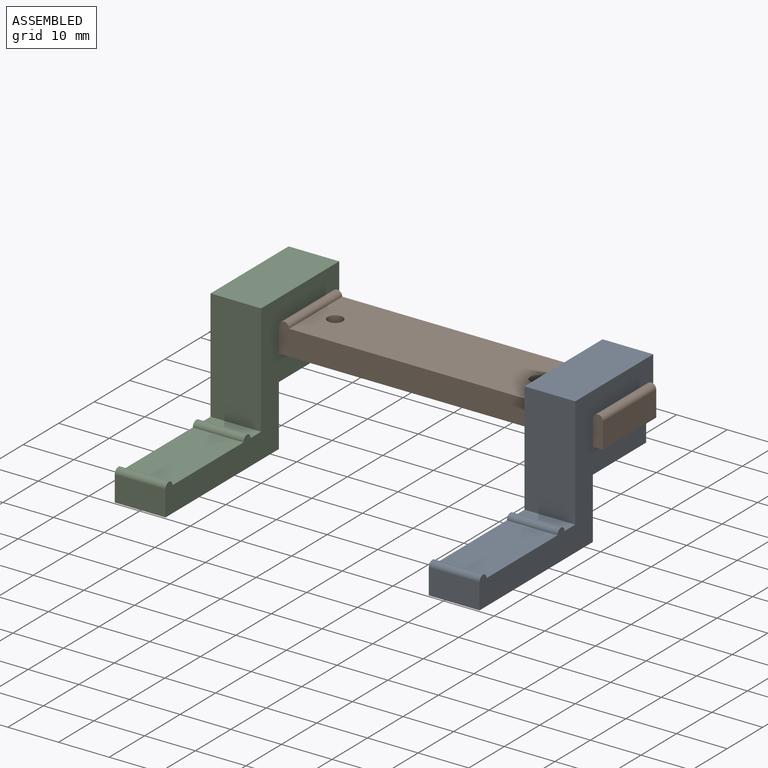
[diagram: assembled view]
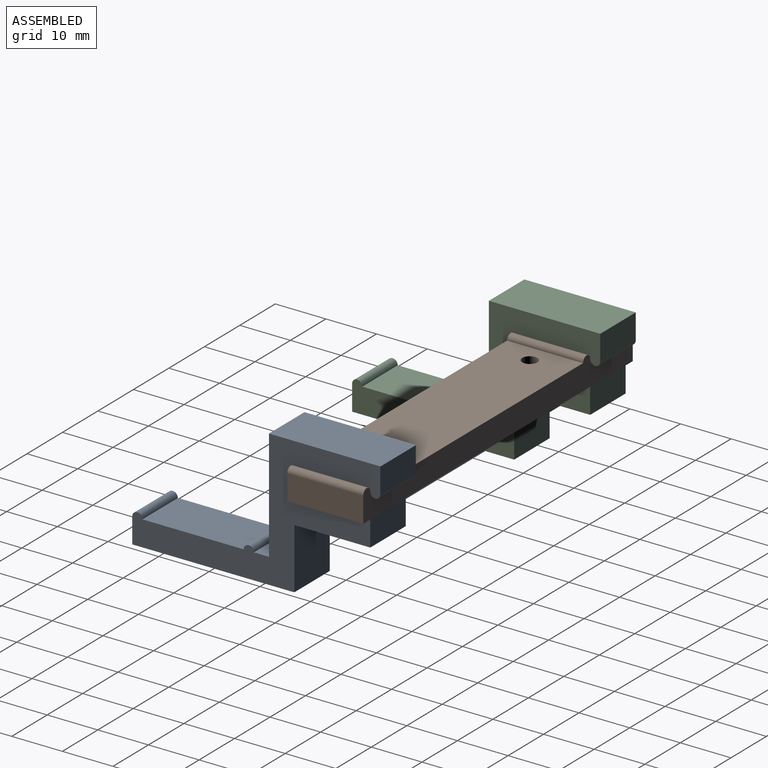
[diagram: assembled view, second angle]
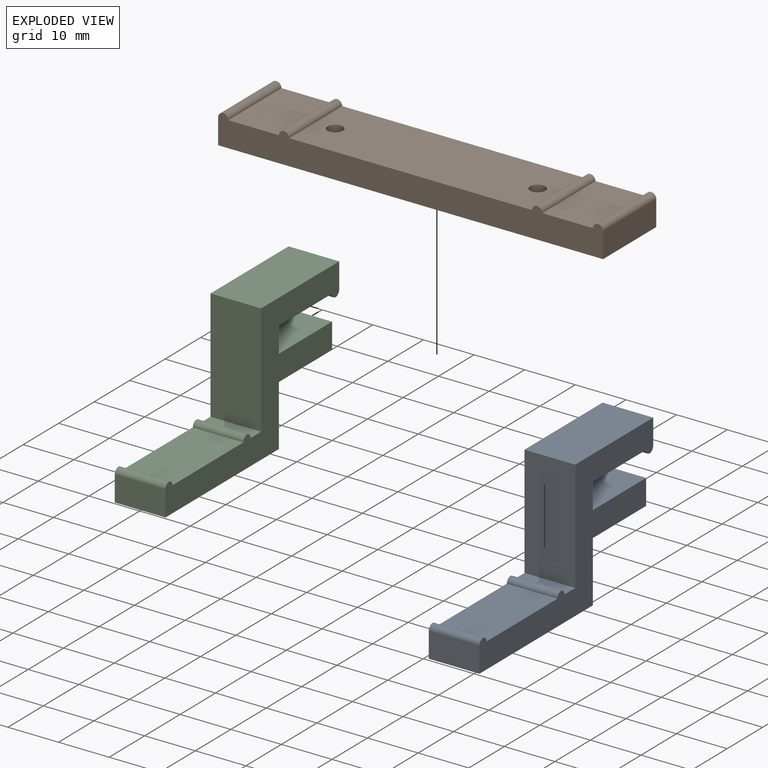
[diagram: exploded view]
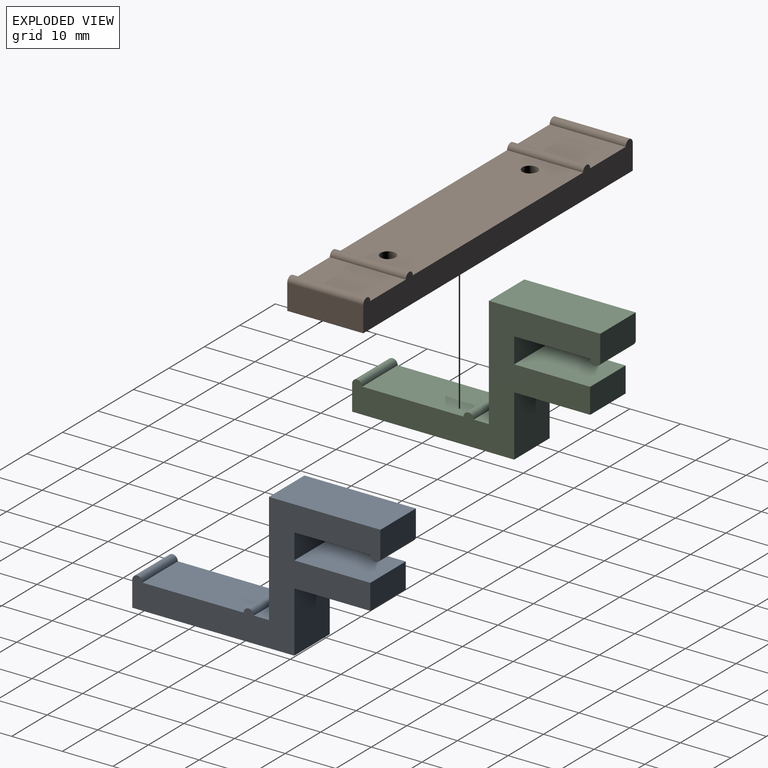
[diagram: exploded view, second angle]
ASSEMBLY  parts=3 mates=2
PART A: 18 faces, bbox 49x10x27 mm
  f0: cylinder r=1mm len=10mm, axis (0,1,0), area 31.4mm2, adj f1,f15,f16,f17
  f1: plane 20x10mm, normal (0,0,1), area 200mm2, adj f0,f2,f16,f17
  f2: cylinder r=1mm len=10mm, axis (0,1,0), area 31.4mm2, adj f1,f3,f16,f17
  f3: plane 10x5mm, normal (-1,0,0), area 50mm2, adj f2,f4,f16,f17
  f4: plane 32x10mm, normal (0,0,-1), area 320mm2, adj f3,f5,f16,f17
  f5: plane 12x10mm, normal (1,0,0), area 120mm2, adj f4,f6,f16,f17
  f6: plane 15x10mm, normal (0,0,-1), area 150mm2, adj f5,f7,f16,f17
  f7: plane 10x5mm, normal (1,0,0), area 50mm2, adj f6,f8,f16,f17
  f8: plane 15x10mm, normal (0,0,1), area 150mm2, adj f7,f9,f16,f17
  f9: plane 10x5mm, normal (1,0,0), area 50mm2, adj f8,f10,f16,f17
  f10: plane 15x10mm, normal (0,0,-1), area 150mm2, adj f9,f11,f16,f17
  f11: cylinder r=1mm len=10mm, axis (0,1,0), area 31.4mm2, adj f10,f12,f16,f17
  f12: plane 10x5mm, normal (1,0,0), area 50mm2, adj f11,f13,f16,f17
  f13: plane 22x10mm, normal (0,0,1), area 220mm2, adj f12,f14,f16,f17
  f14: plane 22x10mm, normal (-1,0,0), area 220mm2, adj f13,f15,f16,f17
  f15: plane 10x3mm, normal (0,0,1), area 30mm2, adj f0,f14,f16,f17
  f16: plane 49x27mm, normal (0,-1,0), area 434.7mm2, adj f0,f1,f2,f3,f4,f5,f6,f7
  f17: plane 49x27mm, normal (0,1,0), area 434.7mm2, adj f0,f1,f2,f3,f4,f5,f6,f7
PART B: 14 faces, bbox 76x15x6 mm
  f0: cylinder r=1mm len=15mm, axis (0,1,0), area 47.1mm2, adj f1,f9,f10,f11
  f1: plane 15x10mm, normal (0,0,1), area 150mm2, adj f0,f2,f10,f11
  f2: cylinder r=1mm len=15mm, axis (0,1,0), area 47.1mm2, adj f1,f3,f10,f11
  f3: plane 15x5mm, normal (-1,0,0), area 75mm2, adj f2,f4,f10,f11
  f4: plane 76x15mm, normal (0,0,-1), area 1125.9mm2, adj f3,f5,f10,f11,f12,f13
  f5: plane 15x5mm, normal (1,0,0), area 75mm2, adj f4,f6,f10,f11
  f6: cylinder r=1mm len=15mm, axis (0,1,0), area 47.1mm2, adj f5,f7,f10,f11
  f7: plane 15x10mm, normal (0,0,1), area 150mm2, adj f6,f8,f10,f11
  f8: cylinder r=1mm len=15mm, axis (0,1,0), area 47.1mm2, adj f7,f9,f10,f11
  f9: plane 48x15mm, normal (0,0,1), area 705.9mm2, adj f0,f8,f10,f11,f12,f13
  f10: plane 76x6mm, normal (0,-1,0), area 386.3mm2, adj f0,f1,f2,f3,f4,f5,f6,f7
  f11: plane 76x6mm, normal (0,1,0), area 386.3mm2, adj f0,f1,f2,f3,f4,f5,f6,f7
  f12: cylinder r=1.5mm len=5mm, axis (0,0,1), area 47.1mm2, adj f4,f9
  f13: cylinder r=1.5mm len=5mm, axis (0,0,1), area 47.1mm2, adj f4,f9
PART C: same geometry as A
PLACE A rot(axis=(0,0,1),90deg) t=(26,-15,-17)mm
PLACE B at identity
PLACE C rot(axis=(0,0,1),90deg) t=(-36,-15,-17)mm
MATE planar A.f10 <-> B.f7  axis (0,0,-1) through (31,-7.5,5)mm
MATE planar C.f10 <-> B.f1  axis (0,0,-1) through (-31,-7.5,5)mm
